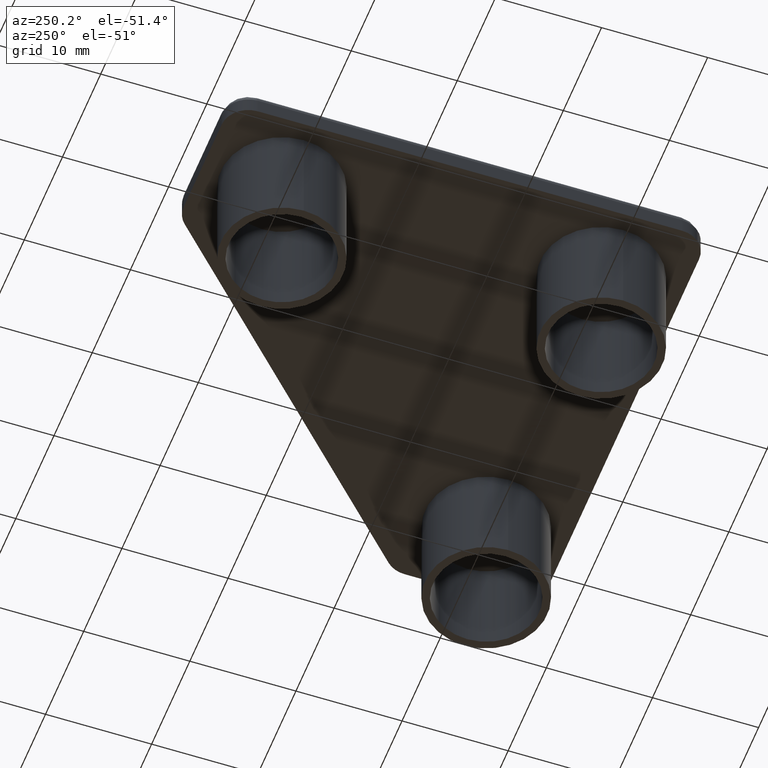
[diagram: clean part render]
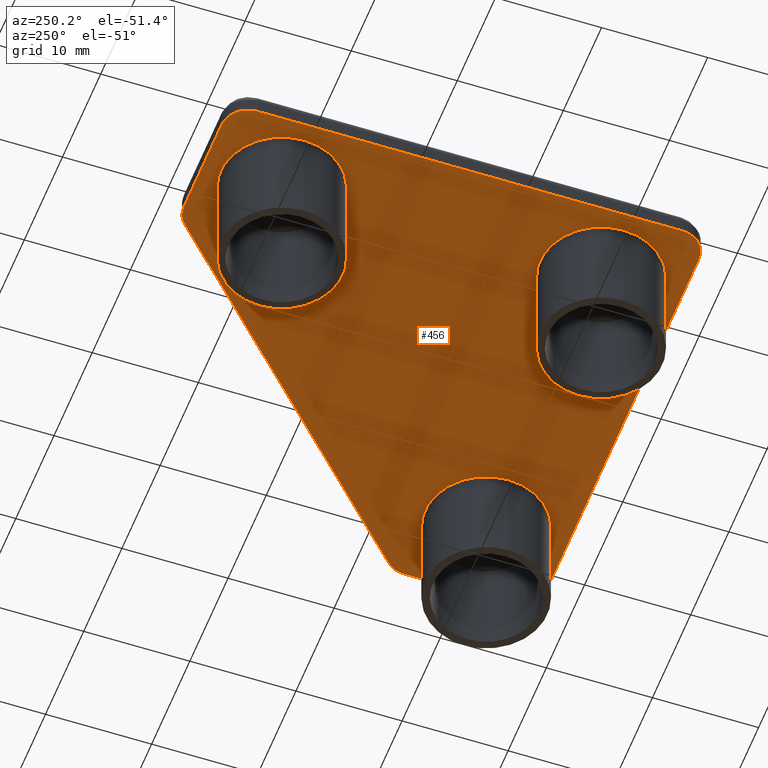
[diagram: same view with one face highlighted and labeled with its STEP entity id]
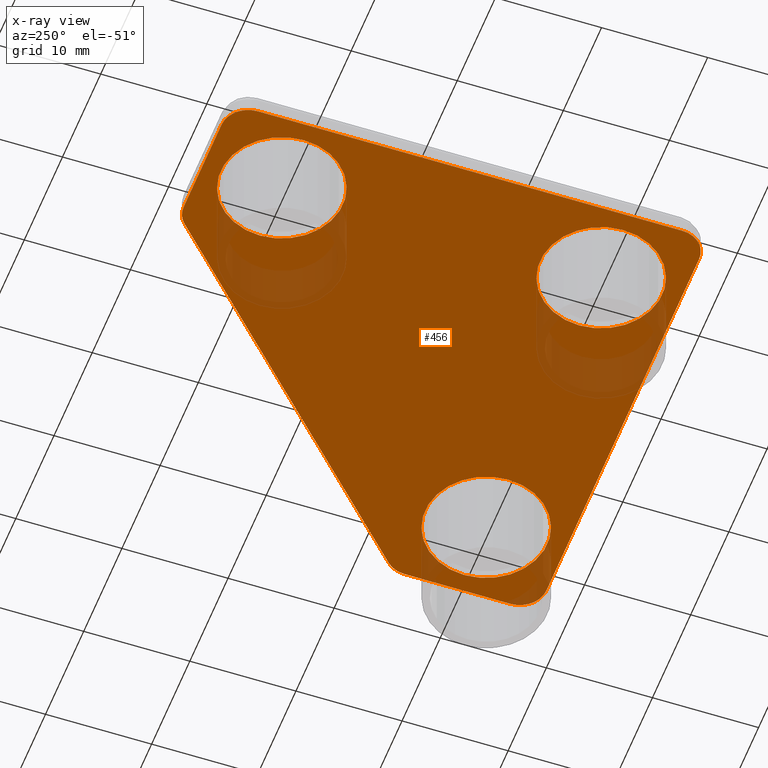
[diagram: x-ray of the same camera — body ghosted, the highlighted face saturated]
A machine part, auxiliary view. The second image highlights one B-rep face of the part: STEP entity #456.
The next image is the same camera in x-ray: the body ghosted, the highlighted face saturated — about 11% of this face is hidden behind the body in this view.
In plain terms, the highlighted planar face has unit normal (0, 0, 1).
Its self-contained STEP definition (entity closure, byte-faithful):
#36=FACE_BOUND('',#83,.T.);
#37=FACE_BOUND('',#84,.T.);
#38=FACE_BOUND('',#85,.T.);
#48=FACE_OUTER_BOUND('',#82,.T.);
#82=EDGE_LOOP('',(#319,#320,#321,#322,#323,#324,#325,#326,#327,#328));
#83=EDGE_LOOP('',(#329));
#84=EDGE_LOOP('',(#330));
#85=EDGE_LOOP('',(#331));
#128=CIRCLE('',#493,2.49999990624018);
#129=CIRCLE('',#494,2.49999999999);
#130=CIRCLE('',#495,2.49999781287765);
#131=CIRCLE('',#496,2.49999983940869);
#132=CIRCLE('',#497,2.50000049999003);
#133=CIRCLE('',#498,5.749999999977);
#134=CIRCLE('',#499,5.749999999977);
#135=CIRCLE('',#500,5.749999999977);
#165=LINE('',#721,#190);
#166=LINE('',#725,#191);
#167=LINE('',#729,#192);
#168=LINE('',#733,#193);
#169=LINE('',#737,#194);
#190=VECTOR('',#562,39.9999535935901);
#191=VECTOR('',#565,39.99995559359);
#192=VECTOR('',#568,9.96442099996013);
#193=VECTOR('',#571,42.4766603751637);
#194=VECTOR('',#574,9.96442116054299);
#215=VERTEX_POINT('',#719);
#216=VERTEX_POINT('',#720);
#217=VERTEX_POINT('',#722);
#218=VERTEX_POINT('',#724);
#219=VERTEX_POINT('',#726);
#220=VERTEX_POINT('',#728);
#221=VERTEX_POINT('',#730);
#222=VERTEX_POINT('',#732);
#223=VERTEX_POINT('',#734);
#224=VERTEX_POINT('',#736);
#225=VERTEX_POINT('',#739);
#226=VERTEX_POINT('',#741);
#227=VERTEX_POINT('',#743);
#257=EDGE_CURVE('',#215,#216,#165,.T.);
#258=EDGE_CURVE('',#217,#215,#128,.T.);
#259=EDGE_CURVE('',#218,#217,#166,.T.);
#260=EDGE_CURVE('',#219,#218,#129,.T.);
#261=EDGE_CURVE('',#220,#219,#167,.T.);
#262=EDGE_CURVE('',#221,#220,#130,.T.);
#263=EDGE_CURVE('',#222,#221,#168,.T.);
#264=EDGE_CURVE('',#223,#222,#131,.T.);
#265=EDGE_CURVE('',#224,#223,#169,.T.);
#266=EDGE_CURVE('',#216,#224,#132,.T.);
#267=EDGE_CURVE('',#225,#225,#133,.T.);
#268=EDGE_CURVE('',#226,#226,#134,.T.);
#269=EDGE_CURVE('',#227,#227,#135,.T.);
#319=ORIENTED_EDGE('',*,*,#257,.F.);
#320=ORIENTED_EDGE('',*,*,#258,.F.);
#321=ORIENTED_EDGE('',*,*,#259,.F.);
#322=ORIENTED_EDGE('',*,*,#260,.F.);
#323=ORIENTED_EDGE('',*,*,#261,.F.);
#324=ORIENTED_EDGE('',*,*,#262,.F.);
#325=ORIENTED_EDGE('',*,*,#263,.F.);
#326=ORIENTED_EDGE('',*,*,#264,.F.);
#327=ORIENTED_EDGE('',*,*,#265,.F.);
#328=ORIENTED_EDGE('',*,*,#266,.F.);
#329=ORIENTED_EDGE('',*,*,#267,.F.);
#330=ORIENTED_EDGE('',*,*,#268,.F.);
#331=ORIENTED_EDGE('',*,*,#269,.F.);
#443=PLANE('',#492);
#456=ADVANCED_FACE('',(#48,#36,#37,#38),#443,.F.);
#492=AXIS2_PLACEMENT_3D('',#718,#560,#561);
#493=AXIS2_PLACEMENT_3D('',#723,#563,#564);
#494=AXIS2_PLACEMENT_3D('',#727,#566,#567);
#495=AXIS2_PLACEMENT_3D('',#731,#569,#570);
#496=AXIS2_PLACEMENT_3D('',#735,#572,#573);
#497=AXIS2_PLACEMENT_3D('',#738,#575,#576);
#498=AXIS2_PLACEMENT_3D('',#740,#577,#578);
#499=AXIS2_PLACEMENT_3D('',#742,#579,#580);
#500=AXIS2_PLACEMENT_3D('',#744,#581,#582);
#560=DIRECTION('center_axis',(0.,0.,1.));
#561=DIRECTION('ref_axis',(1.,0.,0.));
#562=DIRECTION('',(1.,0.,0.));
#563=DIRECTION('center_axis',(0.,0.,1.));
#564=DIRECTION('ref_axis',(0.,-1.,0.));
#565=DIRECTION('',(0.,-1.,0.));
#566=DIRECTION('center_axis',(0.,0.,1.));
#567=DIRECTION('ref_axis',(1.,0.,0.));
#568=DIRECTION('',(-1.,0.,0.));
#569=DIRECTION('center_axis',(0.,0.,1.));
#570=DIRECTION('ref_axis',(0.,1.,0.));
#571=DIRECTION('',(-0.70710678118653,0.707106781186565,0.));
#572=DIRECTION('center_axis',(0.,0.,1.));
#573=DIRECTION('ref_axis',(1.,0.,0.));
#574=DIRECTION('',(0.,1.,0.));
#575=DIRECTION('center_axis',(0.,0.,1.));
#576=DIRECTION('ref_axis',(1.,0.,0.));
#577=DIRECTION('center_axis',(0.,0.,-1.));
#578=DIRECTION('ref_axis',(1.,0.,0.));
#579=DIRECTION('center_axis',(0.,0.,-1.));
#580=DIRECTION('ref_axis',(1.,0.,0.));
#581=DIRECTION('center_axis',(0.,0.,-1.));
#582=DIRECTION('ref_axis',(1.,0.,0.));
#718=CARTESIAN_POINT('Origin',(-26.9999769212991,-4.49999977450817,0.));
#719=CARTESIAN_POINT('',(-19.9999768905454,4.99999874E-7,0.));
#720=CARTESIAN_POINT('',(19.9999767030447,4.99999827E-7,0.));
#721=CARTESIAN_POINT('',(-19.9999768905454,4.99999874E-7,0.));
#722=CARTESIAN_POINT('',(-22.4999767967855,2.50000040624005,0.));
#723=CARTESIAN_POINT('Origin',(-19.9999768905454,2.50000040624005,0.));
#724=CARTESIAN_POINT('',(-22.4999767967855,42.49995599983,0.));
#725=CARTESIAN_POINT('',(-22.4999767967855,42.49995599983,0.));
#726=CARTESIAN_POINT('',(-19.9999767967955,44.99995599982,0.));
#727=CARTESIAN_POINT('Origin',(-19.9999767967955,42.49995599983,0.));
#728=CARTESIAN_POINT('',(-10.0355557968354,44.99995599982,0.));
#729=CARTESIAN_POINT('',(-10.0355557968354,44.99995599982,0.));
#730=CARTESIAN_POINT('',(-8.26779039039797,44.2677235933797,0.));
#731=CARTESIAN_POINT('Origin',(-10.0355557968353,42.4999581869424,0.));
#732=CARTESIAN_POINT('',(21.7677442030375,14.2321889999428,0.));
#733=CARTESIAN_POINT('',(21.7677442030375,14.2321889999428,0.));
#734=CARTESIAN_POINT('',(22.4999772030355,12.4644221605329,0.));
#735=CARTESIAN_POINT('Origin',(19.9999773636268,12.4644221605321,0.));
#736=CARTESIAN_POINT('',(22.4999772030348,2.50000099998988,0.));
#737=CARTESIAN_POINT('',(22.4999772030348,2.50000099998988,0.));
#738=CARTESIAN_POINT('Origin',(19.9999767030447,2.50000099998986,0.));
#739=CARTESIAN_POINT('',(-20.7999777967921,7.44995599997037,0.));
#740=CARTESIAN_POINT('Origin',(-15.0499777968151,7.44995599997037,0.));
#741=CARTESIAN_POINT('',(9.30002320308762,7.44995599997037,0.));
#742=CARTESIAN_POINT('Origin',(15.0500232030646,7.44995599997037,0.));
#743=CARTESIAN_POINT('',(-20.7999777967921,37.5499559998498,0.));
#744=CARTESIAN_POINT('Origin',(-15.0499777968151,37.5499559998498,0.));